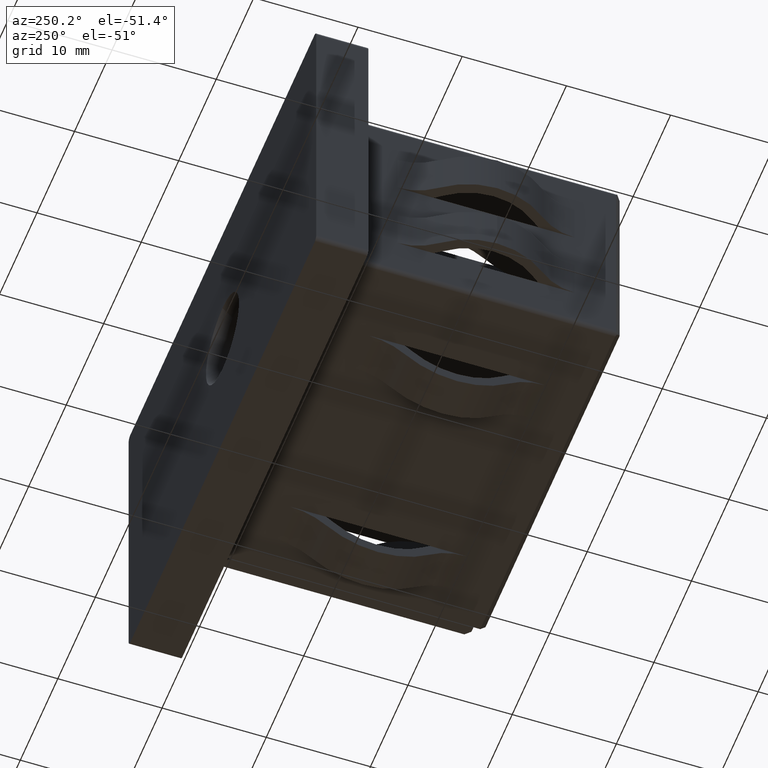
[diagram: clean part render]
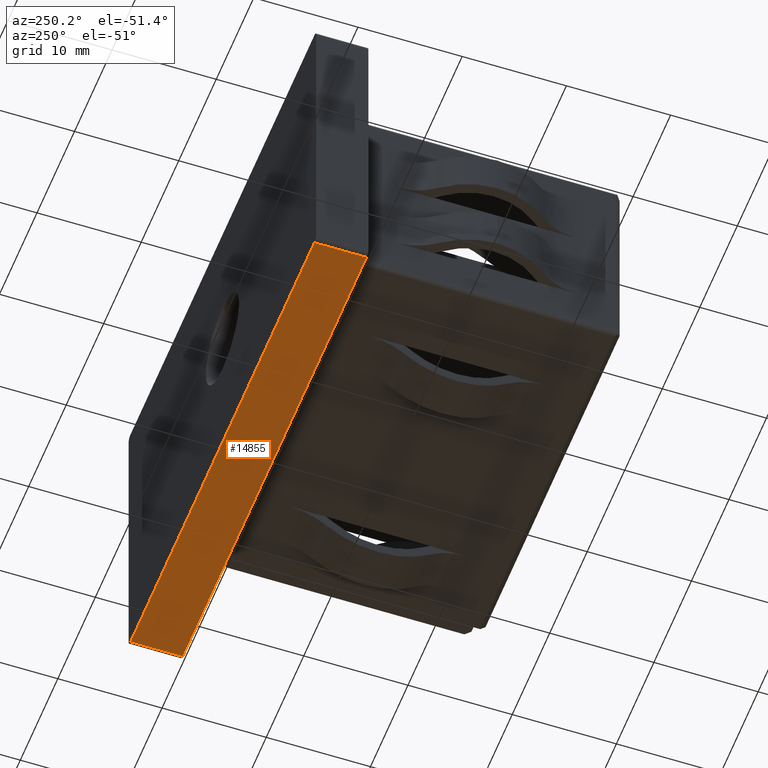
[diagram: same view with one face highlighted and labeled with its STEP entity id]
A machine part, auxiliary view. The second image highlights one B-rep face of the part: STEP entity #14855.
In plain terms, the highlighted planar face has unit normal (0, 0, 1).
Its self-contained STEP definition (entity closure, byte-faithful):
#846 = LINE ( 'NONE', #5238, #15379 ) ;
#902 = LINE ( 'NONE', #4977, #1333 ) ;
#1238 = PLANE ( 'NONE',  #6922 ) ;
#1333 = VECTOR ( 'NONE', #6449, 1000.000000000000000 ) ;
#1755 = ORIENTED_EDGE ( 'NONE', *, *, #5327, .F. ) ;
#2065 = EDGE_CURVE ( 'NONE', #6189, #9091, #846, .T. ) ;
#2180 = VECTOR ( 'NONE', #14216, 1000.000000000000000 ) ;
#2192 = ORIENTED_EDGE ( 'NONE', *, *, #2065, .T. ) ;
#2445 = CARTESIAN_POINT ( 'NONE',  ( -24.49999999999999600, 0.0000000000000000000, -14.99999999999999800 ) ) ;
#2725 = LINE ( 'NONE', #13180, #14834 ) ;
#4760 = DIRECTION ( 'NONE',  ( -1.000000000000000000, -0.0000000000000000000, -0.0000000000000000000 ) ) ;
#4977 = CARTESIAN_POINT ( 'NONE',  ( 24.50000000000000400, 5.000000000000000000, -14.99999999999999800 ) ) ;
#5238 = CARTESIAN_POINT ( 'NONE',  ( -24.99999999999999600, 0.0000000000000000000, -14.99999999999999800 ) ) ;
#5327 = EDGE_CURVE ( 'NONE', #13428, #15620, #2725, .T. ) ;
#5493 = CARTESIAN_POINT ( 'NONE',  ( -24.49999999999999600, 5.000000000000000000, -14.99999999999999800 ) ) ;
#6189 = VERTEX_POINT ( 'NONE', #15452 ) ;
#6449 = DIRECTION ( 'NONE',  ( 0.0000000000000000000, -1.000000000000000000, 0.0000000000000000000 ) ) ;
#6922 = AXIS2_PLACEMENT_3D ( 'NONE', #18087, #15378, #12418 ) ;
#7158 = EDGE_CURVE ( 'NONE', #13428, #6189, #902, .T. ) ;
#7740 = ORIENTED_EDGE ( 'NONE', *, *, #15686, .T. ) ;
#7842 = FACE_OUTER_BOUND ( 'NONE', #10354, .T. ) ;
#9091 = VERTEX_POINT ( 'NONE', #2445 ) ;
#10354 = EDGE_LOOP ( 'NONE', ( #1755, #12304, #2192, #7740 ) ) ;
#12304 = ORIENTED_EDGE ( 'NONE', *, *, #7158, .T. ) ;
#12418 = DIRECTION ( 'NONE',  ( 1.000000000000000000, 0.0000000000000000000, -0.0000000000000000000 ) ) ;
#12910 = CARTESIAN_POINT ( 'NONE',  ( -24.49999999999999600, 5.000000000000000000, -14.99999999999999800 ) ) ;
#13180 = CARTESIAN_POINT ( 'NONE',  ( -24.99999999999999600, 5.000000000000000000, -14.99999999999999800 ) ) ;
#13428 = VERTEX_POINT ( 'NONE', #14207 ) ;
#13530 = DIRECTION ( 'NONE',  ( -1.000000000000000000, -0.0000000000000000000, -0.0000000000000000000 ) ) ;
#14207 = CARTESIAN_POINT ( 'NONE',  ( 24.50000000000000400, 5.000000000000000000, -14.99999999999999800 ) ) ;
#14216 = DIRECTION ( 'NONE',  ( -0.0000000000000000000, 1.000000000000000000, -0.0000000000000000000 ) ) ;
#14834 = VECTOR ( 'NONE', #4760, 1000.000000000000000 ) ;
#14855 = ADVANCED_FACE ( 'NONE', ( #7842 ), #1238, .F. ) ;
#15378 = DIRECTION ( 'NONE',  ( 0.0000000000000000000, 0.0000000000000000000, 1.000000000000000000 ) ) ;
#15379 = VECTOR ( 'NONE', #13530, 1000.000000000000000 ) ;
#15452 = CARTESIAN_POINT ( 'NONE',  ( 24.50000000000000400, 0.0000000000000000000, -14.99999999999999800 ) ) ;
#15601 = LINE ( 'NONE', #12910, #2180 ) ;
#15620 = VERTEX_POINT ( 'NONE', #5493 ) ;
#15686 = EDGE_CURVE ( 'NONE', #9091, #15620, #15601, .T. ) ;
#18087 = CARTESIAN_POINT ( 'NONE',  ( -24.99999999999999600, 5.000000000000000000, -14.99999999999999800 ) ) ;